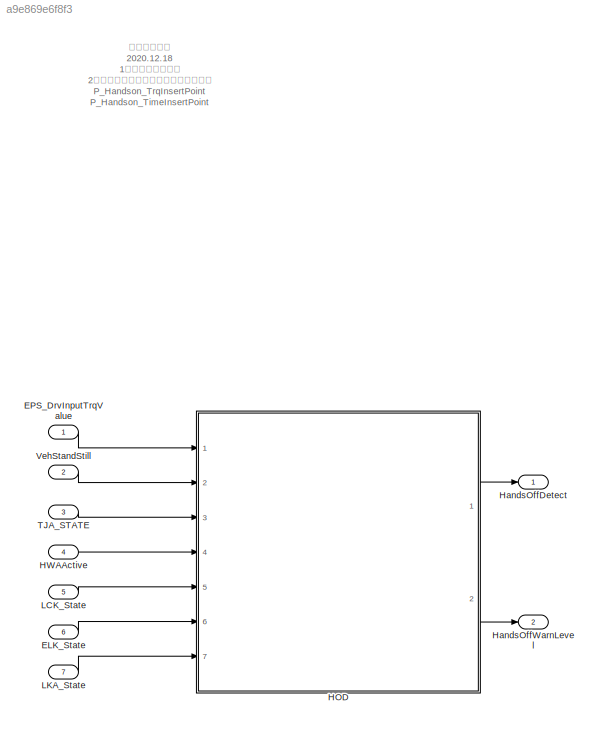
MODEL slx_a9e869e6f8f3
KIND model
CONFIG AbsTol = auto
CONFIG EnableMultiTasking = off
CONFIG FixedStep = auto
CONFIG InitFcn = , if any(exist('dsmpb_private', 'file') ~= 0), dsmpb_private('dsmpb_mdlclblib', 'Init', bdroot); end,\n
CONFIG MaxStep = auto
CONFIG MinStep = auto
CONFIG PostLoadFcn = if any(exist('dsrtsu_mdlpostloadfcn', 'file') ~= 0), dsrtsu_mdlpostloadfcn('Execute', bdroot); end
CONFIG RelTol = 1e-3
CONFIG SampleTimeConstraint = Unconstrained
CONFIG SolverName = FixedStepDiscrete
CONFIG StartTime = 0.0
CONFIG StopTime = Inf
BLOCK [Inport] ELK_State
  OutDataTypeStr = Enum: ELKSTATE
  Port = 6
BLOCK [Inport] EPS_DrvInputTrqValue
  OutDataTypeStr = single
BLOCK [SubSystem] HOD
  Ports = [7, 2]
  ReferencedSubsystem = PvtSubSys_VSM_HOD
  RequestExecContextInheritance = off
BLOCK [Inport] HWAActive
  OutDataTypeStr = boolean
  Port = 4
BLOCK [Outport] HandsOffDetect
  OutDataTypeStr = boolean
BLOCK [Outport] HandsOffWarnLevel
  OutDataTypeStr = uint8
  Port = 2
BLOCK [Inport] LCK_State
  OutDataTypeStr = Enum: LCK_STATE
  Port = 5
BLOCK [Inport] LKA_State
  OutDataTypeStr = Enum: STATE
  Port = 7
BLOCK [Inport] TJA_STATE
  OutDataTypeStr = Enum: TJA_STATE
  Port = 3
BLOCK [Inport] VehStandStill
  OutDataTypeStr = uint8
  Port = 2
ANNOTATION (root): 模型更改记录 2020.12.18 1、修改接线错误； 2、将未脱手力矩持续时间做成标定量； P_Handson_TrqInsertPoint P_Handson_TimeInsertPoint 2020.12.18 标定量名称更改P_VSM_HOD.... 2020.12.29 横向进五级状态转移条件修改（原因：TJA取消Off状态） 2020.1.5 横向3进5逻辑符号错误修改
LINE ELK_State:1 -> HOD:6
LINE EPS_DrvInputTrqValue:1 -> HOD:1
LINE HOD:1 -> HandsOffDetect:1
LINE HOD:2 -> HandsOffWarnLevel:1
LINE HWAActive:1 -> HOD:4
LINE LCK_State:1 -> HOD:5
LINE LKA_State:1 -> HOD:7
LINE TJA_STATE:1 -> HOD:3
LINE VehStandStill:1 -> HOD:2
